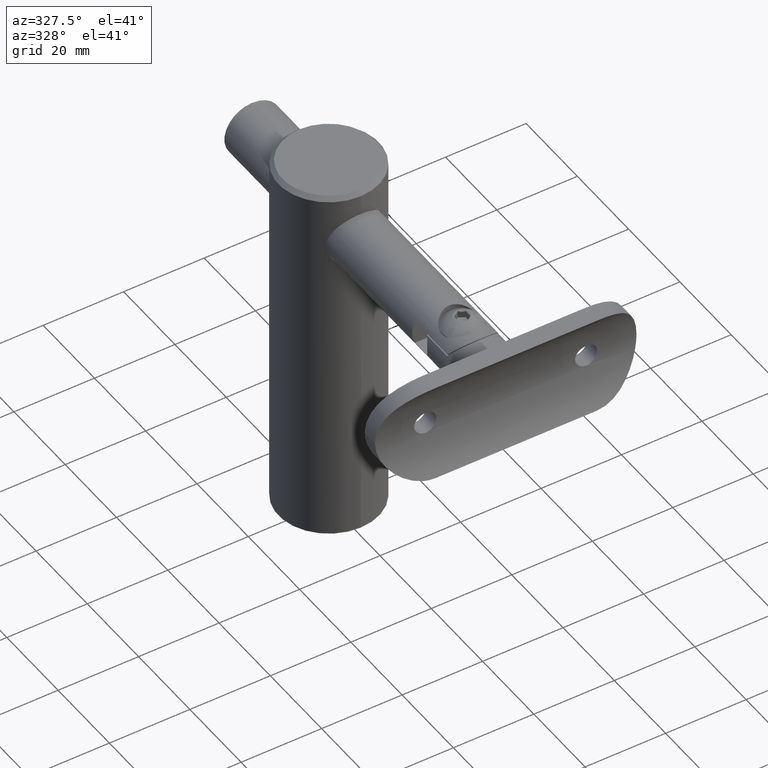
[diagram: clean part render]
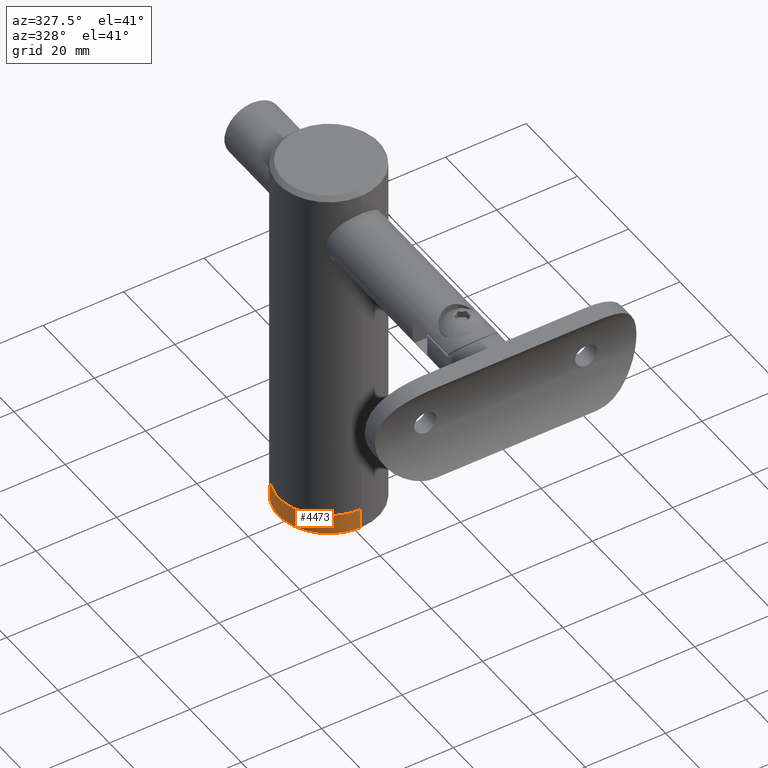
[diagram: same view with one face highlighted and labeled with its STEP entity id]
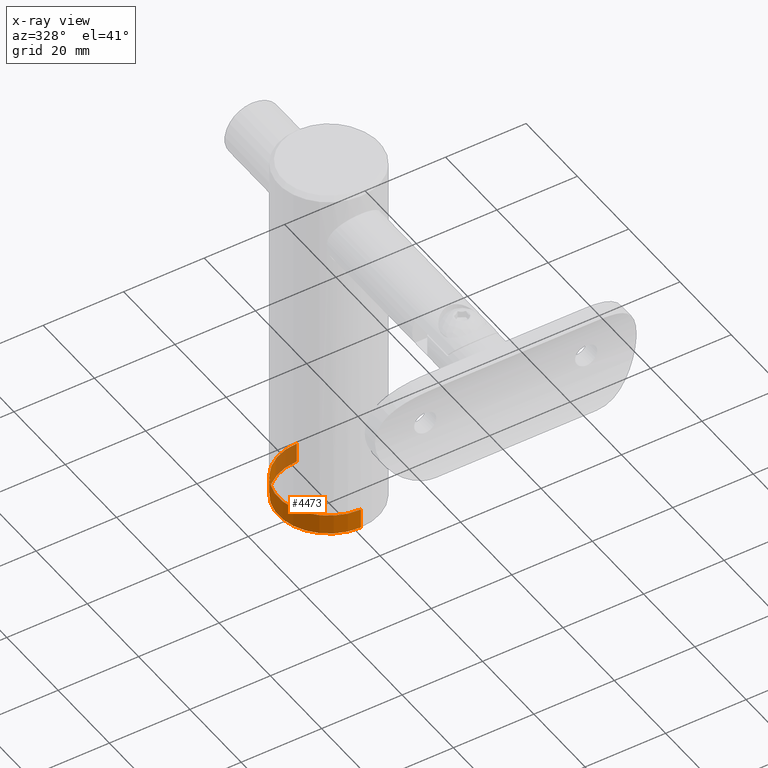
[diagram: x-ray of the same camera — body ghosted, the highlighted face saturated]
A machine part, auxiliary view. The second image highlights one B-rep face of the part: STEP entity #4473.
The next image is the same camera in x-ray: the body ghosted, the highlighted face saturated — about 18% of this face is hidden behind the body in this view.
In plain terms, the highlighted cylindrical surface (partial cylindrical patch) has radius 12.5 mm, axis along (0, 0, -1).
Its self-contained STEP definition (entity closure, byte-faithful):
#538 = CARTESIAN_POINT ( 'NONE',  ( 1.530808498934191521E-15, -12.50000000000000000, 4.999999999999996447 ) ) ;
#1171 = DIRECTION ( 'NONE',  ( -0.000000000000000000, 1.224646799147353207E-16, -1.000000000000000000 ) ) ;
#1312 = CARTESIAN_POINT ( 'NONE',  ( 0.000000000000000000, 12.50000000000000000, 1.530808498934191521E-15 ) ) ;
#2073 = CARTESIAN_POINT ( 'NONE',  ( 1.530808498934191521E-15, -12.50000000000000000, -1.530808498934191521E-15 ) ) ;
#2566 = VERTEX_POINT ( 'NONE', #12681 ) ;
#2630 = AXIS2_PLACEMENT_3D ( 'NONE', #16071, #5858, #11158 ) ;
#2906 = ORIENTED_EDGE ( 'NONE', *, *, #7375, .F. ) ;
#2927 = VERTEX_POINT ( 'NONE', #538 ) ;
#3412 = VECTOR ( 'NONE', #18065, 1000.000000000000000 ) ;
#4473 = ADVANCED_FACE ( 'NONE', ( #16712 ), #6744, .T. ) ;
#4934 = CIRCLE ( 'NONE', #2630, 12.50000000000000000 ) ;
#5858 = DIRECTION ( 'NONE',  ( -0.000000000000000000, 1.224646799147353207E-16, -1.000000000000000000 ) ) ;
#6744 = CYLINDRICAL_SURFACE ( 'NONE', #17716, 12.50000000000000000 ) ;
#7375 = EDGE_CURVE ( 'NONE', #19337, #2566, #12323, .T. ) ;
#7639 = ORIENTED_EDGE ( 'NONE', *, *, #18461, .T. ) ;
#10611 = CARTESIAN_POINT ( 'NONE',  ( 0.000000000000000000, 0.000000000000000000, 0.000000000000000000 ) ) ;
#11158 = DIRECTION ( 'NONE',  ( 0.000000000000000000, 1.000000000000000000, 1.387778780781445676E-16 ) ) ;
#11233 = ORIENTED_EDGE ( 'NONE', *, *, #13222, .F. ) ;
#11369 = VERTEX_POINT ( 'NONE', #18649 ) ;
#11766 = LINE ( 'NONE', #1312, #13791 ) ;
#12323 = CIRCLE ( 'NONE', #17602, 12.50000000000000000 ) ;
#12681 = CARTESIAN_POINT ( 'NONE',  ( 0.000000000000000000, 12.50000000000000000, 0.000000000000000000 ) ) ;
#13101 = EDGE_CURVE ( 'NONE', #2927, #11369, #4934, .T. ) ;
#13222 = EDGE_CURVE ( 'NONE', #2927, #19337, #13620, .T. ) ;
#13561 = DIRECTION ( 'NONE',  ( -0.000000000000000000, 1.224646799147353207E-16, -1.000000000000000000 ) ) ;
#13620 = LINE ( 'NONE', #2073, #3412 ) ;
#13791 = VECTOR ( 'NONE', #21112, 1000.000000000000000 ) ;
#14547 = CARTESIAN_POINT ( 'NONE',  ( 1.530808498934191521E-15, -12.50000000000000000, -3.061616997868383043E-15 ) ) ;
#15224 = EDGE_LOOP ( 'NONE', ( #11233, #18212, #7639, #2906 ) ) ;
#16071 = CARTESIAN_POINT ( 'NONE',  ( 0.000000000000000000, -6.123233995736764310E-16, 4.999999999999998224 ) ) ;
#16712 = FACE_OUTER_BOUND ( 'NONE', #15224, .T. ) ;
#17485 = CARTESIAN_POINT ( 'NONE',  ( 0.000000000000000000, 1.874699728327322119E-31, -1.530808498934191521E-15 ) ) ;
#17602 = AXIS2_PLACEMENT_3D ( 'NONE', #17485, #1171, #18980 ) ;
#17716 = AXIS2_PLACEMENT_3D ( 'NONE', #10611, #13561, #20245 ) ;
#18065 = DIRECTION ( 'NONE',  ( -0.000000000000000000, 1.224646799147353207E-16, -1.000000000000000000 ) ) ;
#18212 = ORIENTED_EDGE ( 'NONE', *, *, #13101, .T. ) ;
#18461 = EDGE_CURVE ( 'NONE', #11369, #2566, #11766, .T. ) ;
#18649 = CARTESIAN_POINT ( 'NONE',  ( 0.000000000000000000, 12.50000000000000000, 5.000000000000000000 ) ) ;
#18980 = DIRECTION ( 'NONE',  ( 0.000000000000000000, 1.000000000000000000, 1.224646799147353207E-16 ) ) ;
#19337 = VERTEX_POINT ( 'NONE', #14547 ) ;
#20245 = DIRECTION ( 'NONE',  ( 0.000000000000000000, 1.000000000000000000, 1.224646799147353207E-16 ) ) ;
#21112 = DIRECTION ( 'NONE',  ( -0.000000000000000000, 1.224646799147353207E-16, -1.000000000000000000 ) ) ;